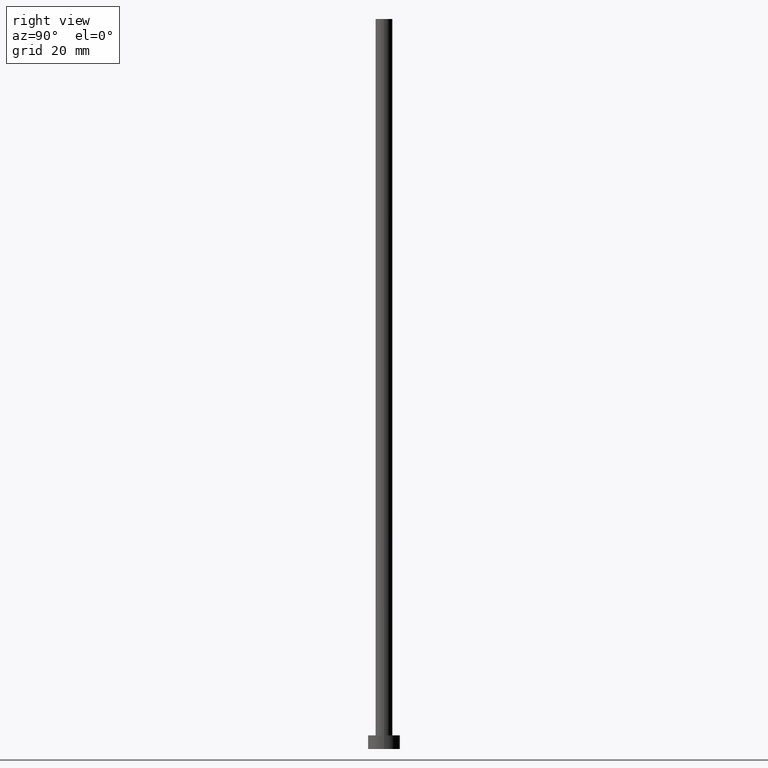
[diagram: clean part render]
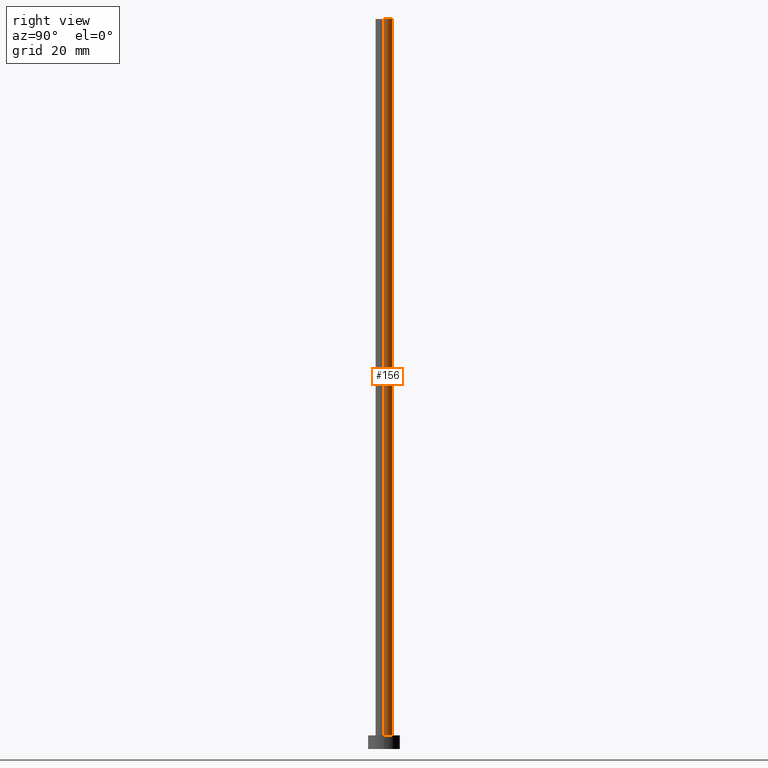
[diagram: same view with one face highlighted and labeled with its STEP entity id]
A machine part, right view. The second image highlights one B-rep face of the part: STEP entity #156.
In plain terms, the highlighted cylindrical surface (edge-blend (fillet) strip) has radius 1.85 mm, axis along (-0, -0, -1).
Its self-contained STEP definition (entity closure, byte-faithful):
#3 = AXIS2_PLACEMENT_3D ( 'NONE', #152, #169, #44 ) ;
#4 = EDGE_CURVE ( 'NONE', #75, #63, #158, .T. ) ;
#9 = LINE ( 'NONE', #103, #110 ) ;
#24 = VERTEX_POINT ( 'NONE', #191 ) ;
#33 = ORIENTED_EDGE ( 'NONE', *, *, #185, .F. ) ;
#41 = AXIS2_PLACEMENT_3D ( 'NONE', #231, #132, #187 ) ;
#44 = DIRECTION ( 'NONE',  ( 1.000000000000000000, 0.000000000000000000, 0.000000000000000000 ) ) ;
#46 = ORIENTED_EDGE ( 'NONE', *, *, #188, .F. ) ;
#54 = EDGE_CURVE ( 'NONE', #204, #75, #9, .T. ) ;
#57 = DIRECTION ( 'NONE',  ( -0.000000000000000000, -0.000000000000000000, -1.000000000000000000 ) ) ;
#63 = VERTEX_POINT ( 'NONE', #90 ) ;
#69 = DIRECTION ( 'NONE',  ( -0.000000000000000000, -0.000000000000000000, -1.000000000000000000 ) ) ;
#75 = VERTEX_POINT ( 'NONE', #223 ) ;
#80 = CARTESIAN_POINT ( 'NONE',  ( -1.850000000000000089, 0.000000000000000000, 160.0000000000000000 ) ) ;
#82 = ORIENTED_EDGE ( 'NONE', *, *, #54, .T. ) ;
#85 = VECTOR ( 'NONE', #57, 1000.000000000000000 ) ;
#90 = CARTESIAN_POINT ( 'NONE',  ( -1.850000000000000089, 0.000000000000000000, 3.000000000000000000 ) ) ;
#94 = LINE ( 'NONE', #80, #85 ) ;
#103 = CARTESIAN_POINT ( 'NONE',  ( 1.850000000000000089, 2.265596578422603100E-16, 160.0000000000000000 ) ) ;
#110 = VECTOR ( 'NONE', #69, 1000.000000000000000 ) ;
#114 = DIRECTION ( 'NONE',  ( -0.000000000000000000, -0.000000000000000000, -1.000000000000000000 ) ) ;
#129 = EDGE_LOOP ( 'NONE', ( #33, #82, #247, #46 ) ) ;
#132 = DIRECTION ( 'NONE',  ( 0.000000000000000000, 0.000000000000000000, 1.000000000000000000 ) ) ;
#137 = FACE_OUTER_BOUND ( 'NONE', #129, .T. ) ;
#152 = CARTESIAN_POINT ( 'NONE',  ( 0.000000000000000000, 0.000000000000000000, 3.000000000000000000 ) ) ;
#155 = CYLINDRICAL_SURFACE ( 'NONE', #179, 1.850000000000000089 ) ;
#156 = ADVANCED_FACE ( 'NONE', ( #137 ), #155, .T. ) ;
#158 = CIRCLE ( 'NONE', #3, 1.850000000000000089 ) ;
#169 = DIRECTION ( 'NONE',  ( 0.000000000000000000, 0.000000000000000000, 1.000000000000000000 ) ) ;
#179 = AXIS2_PLACEMENT_3D ( 'NONE', #210, #114, #197 ) ;
#185 = EDGE_CURVE ( 'NONE', #204, #24, #251, .T. ) ;
#187 = DIRECTION ( 'NONE',  ( 1.000000000000000000, 0.000000000000000000, 0.000000000000000000 ) ) ;
#188 = EDGE_CURVE ( 'NONE', #24, #63, #94, .T. ) ;
#191 = CARTESIAN_POINT ( 'NONE',  ( -1.850000000000000089, 0.000000000000000000, 160.0000000000000000 ) ) ;
#196 = CARTESIAN_POINT ( 'NONE',  ( 1.850000000000000089, 2.265596578422603100E-16, 160.0000000000000000 ) ) ;
#197 = DIRECTION ( 'NONE',  ( -1.000000000000000000, 0.000000000000000000, 0.000000000000000000 ) ) ;
#204 = VERTEX_POINT ( 'NONE', #196 ) ;
#210 = CARTESIAN_POINT ( 'NONE',  ( 0.000000000000000000, 0.000000000000000000, 160.0000000000000000 ) ) ;
#223 = CARTESIAN_POINT ( 'NONE',  ( 1.850000000000000089, 2.265596578422603100E-16, 3.000000000000000000 ) ) ;
#231 = CARTESIAN_POINT ( 'NONE',  ( 0.000000000000000000, 0.000000000000000000, 160.0000000000000000 ) ) ;
#247 = ORIENTED_EDGE ( 'NONE', *, *, #4, .T. ) ;
#251 = CIRCLE ( 'NONE', #41, 1.850000000000000089 ) ;